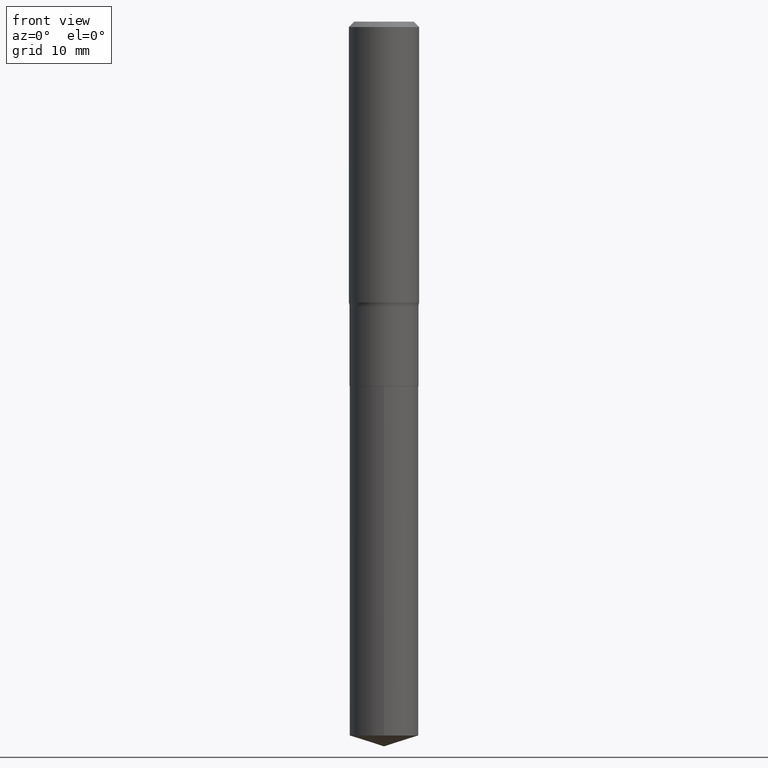
[diagram: clean part render]
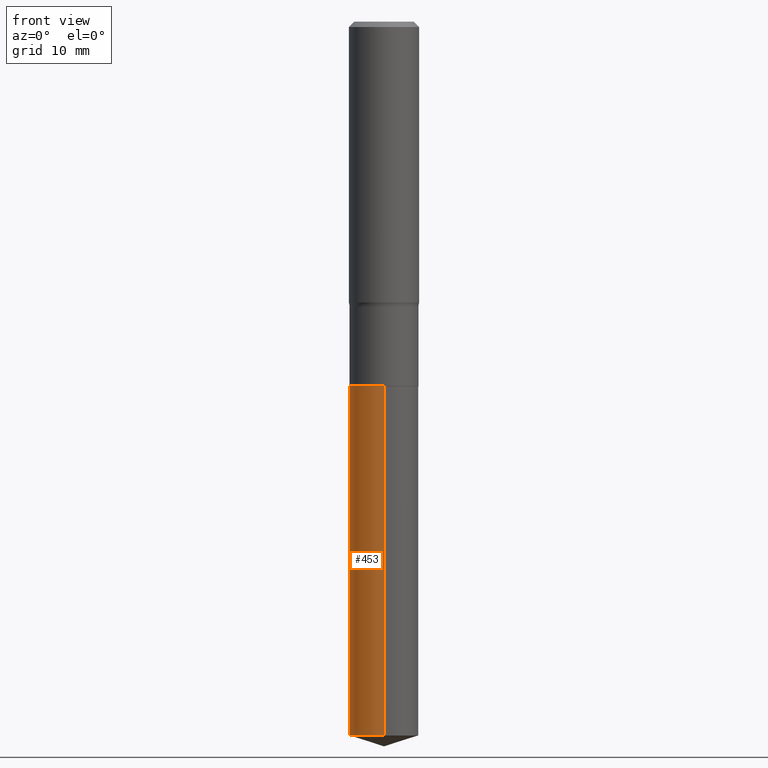
[diagram: same view with one face highlighted and labeled with its STEP entity id]
A machine part, front view. The second image highlights one B-rep face of the part: STEP entity #453.
In plain terms, the highlighted cylindrical surface (edge-blend (fillet) strip) has radius 4.8997 mm, axis along (-0, 0, 1).
Its self-contained STEP definition (entity closure, byte-faithful):
#12 = DIRECTION ( 'NONE',  ( -6.982962677686265133E-15, -1.000000000000000000, 2.832398127179122126E-15 ) ) ;
#19 = CARTESIAN_POINT ( 'NONE',  ( 1.370636937281282873E-15, 0.1928999999999928272, -2.039300000000000779 ) ) ;
#23 = CARTESIAN_POINT ( 'NONE',  ( 4.987044536453349004E-29, -7.120177894302827657E-15, -2.039299999999999891 ) ) ;
#25 = DIRECTION ( 'NONE',  ( -2.445554267651849179E-29, 3.491358953158648949E-15, 1.000000000000000000 ) ) ;
#42 = EDGE_CURVE ( 'NONE', #447, #257, #448, .T. ) ;
#45 = LINE ( 'NONE', #311, #300 ) ;
#48 = DIRECTION ( 'NONE',  ( -2.445554267651848899E-29, 3.491358953158648949E-15, 1.000000000000000000 ) ) ;
#51 = CARTESIAN_POINT ( 'NONE',  ( -1.347013500525630576E-15, -0.1929000000000071213, -2.039299999999999446 ) ) ;
#82 = CARTESIAN_POINT ( 'NONE',  ( 1.370636937281330796E-15, 0.1928999999999860826, -3.994278863625245535 ) ) ;
#87 = CARTESIAN_POINT ( 'NONE',  ( 4.987044536453349004E-29, -7.120177894302827657E-15, -2.039299999999999891 ) ) ;
#90 = CARTESIAN_POINT ( 'NONE',  ( -1.347013500525583047E-15, -0.1929000000000139492, -3.994278863625244647 ) ) ;
#107 = AXIS2_PLACEMENT_3D ( 'NONE', #265, #352, #12 ) ;
#109 = ORIENTED_EDGE ( 'NONE', *, *, #42, .T. ) ;
#118 = FACE_OUTER_BOUND ( 'NONE', #416, .T. ) ;
#135 = ORIENTED_EDGE ( 'NONE', *, *, #195, .T. ) ;
#166 = ORIENTED_EDGE ( 'NONE', *, *, #214, .F. ) ;
#171 = DIRECTION ( 'NONE',  ( -2.445554267651848899E-29, 3.491358953158648949E-15, 1.000000000000000000 ) ) ;
#195 = EDGE_CURVE ( 'NONE', #257, #358, #45, .T. ) ;
#214 = EDGE_CURVE ( 'NONE', #476, #358, #348, .T. ) ;
#216 = AXIS2_PLACEMENT_3D ( 'NONE', #87, #48, #354 ) ;
#223 = ORIENTED_EDGE ( 'NONE', *, *, #392, .F. ) ;
#257 = VERTEX_POINT ( 'NONE', #90 ) ;
#265 = CARTESIAN_POINT ( 'NONE',  ( 9.768051439561228148E-29, -1.394571085305674825E-14, -3.994278863625245091 ) ) ;
#300 = VECTOR ( 'NONE', #351, 39.37007874015748143 ) ;
#303 = VECTOR ( 'NONE', #25, 39.37007874015748143 ) ;
#311 = CARTESIAN_POINT ( 'NONE',  ( -1.347013500525630576E-15, -0.1929000000000071213, -2.039299999999999446 ) ) ;
#312 = CYLINDRICAL_SURFACE ( 'NONE', #339, 0.1928999999999999881 ) ;
#339 = AXIS2_PLACEMENT_3D ( 'NONE', #23, #171, #357 ) ;
#348 = CIRCLE ( 'NONE', #216, 0.1928999999999999881 ) ;
#351 = DIRECTION ( 'NONE',  ( -2.445554267651849179E-29, 3.491358953158648949E-15, 1.000000000000000000 ) ) ;
#352 = DIRECTION ( 'NONE',  ( -2.445554267651848899E-29, 3.491358953158648949E-15, 1.000000000000000000 ) ) ;
#354 = DIRECTION ( 'NONE',  ( -6.982962677686265133E-15, -1.000000000000000000, 2.832398127179122126E-15 ) ) ;
#357 = DIRECTION ( 'NONE',  ( -6.982962677686265133E-15, -1.000000000000000000, 2.832398127179122126E-15 ) ) ;
#358 = VERTEX_POINT ( 'NONE', #51 ) ;
#392 = EDGE_CURVE ( 'NONE', #447, #476, #443, .T. ) ;
#416 = EDGE_LOOP ( 'NONE', ( #223, #109, #135, #166 ) ) ;
#431 = CARTESIAN_POINT ( 'NONE',  ( 1.370636937281330796E-15, 0.1928999999999928272, -2.039300000000000779 ) ) ;
#443 = LINE ( 'NONE', #19, #303 ) ;
#447 = VERTEX_POINT ( 'NONE', #82 ) ;
#448 = CIRCLE ( 'NONE', #107, 0.1928999999999999881 ) ;
#453 = ADVANCED_FACE ( 'NONE', ( #118 ), #312, .T. ) ;
#476 = VERTEX_POINT ( 'NONE', #431 ) ;